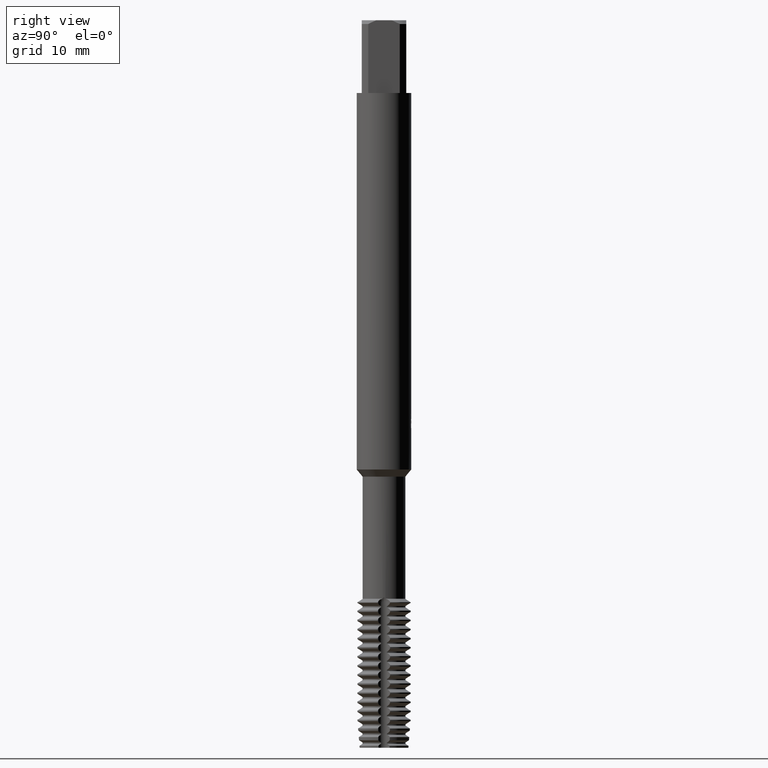
[diagram: clean part render]
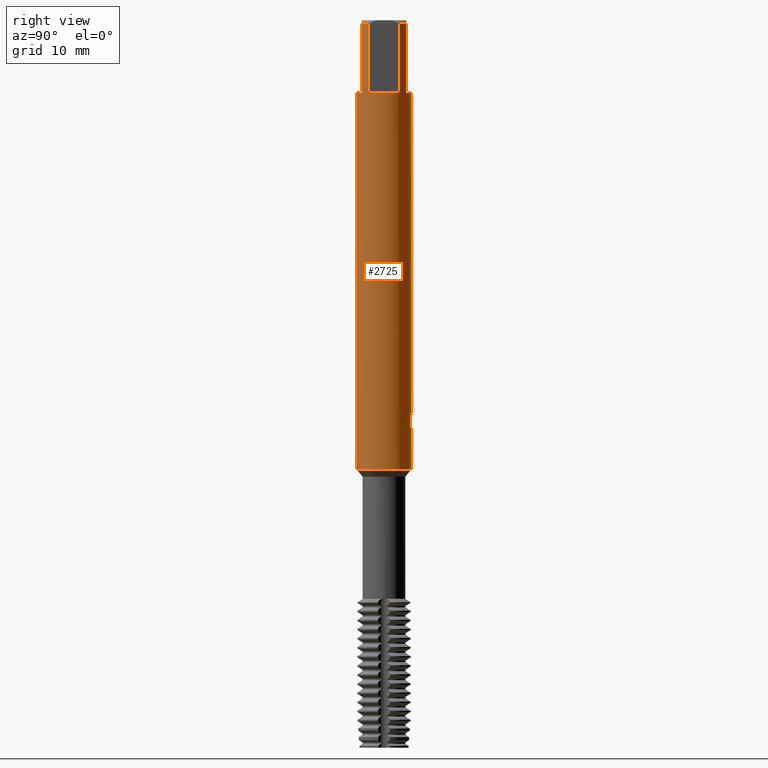
[diagram: same view with one face highlighted and labeled with its STEP entity id]
A machine part, right view. The second image highlights one B-rep face of the part: STEP entity #2725.
In plain terms, the highlighted cylindrical surface (edge-blend (fillet) strip) has radius 3 mm, axis along (-0, -0, 1).
Its self-contained STEP definition (entity closure, byte-faithful):
#2725=ADVANCED_FACE('',(#8128),#8129,.T.);
#3111=VERTEX_POINT('',#8548);
#3395=VERTEX_POINT('',#8858);
#3441=EDGE_CURVE('',#7007,#3651,#8906,.T.);
#3625=EDGE_CURVE('',#7101,#5955,#9104,.T.);
#3651=VERTEX_POINT('',#9132);
#3693=EDGE_CURVE('',#7841,#3809,#9177,.T.);
#3791=EDGE_CURVE('',#5959,#6315,#9279,.T.);
#3809=VERTEX_POINT('',#9301);
#3919=EDGE_CURVE('',#4203,#7877,#9416,.T.);
#3993=VERTEX_POINT('',#9498);
#4203=VERTEX_POINT('',#9729);
#4419=EDGE_CURVE('',#6315,#3651,#9964,.T.);
#4421=EDGE_CURVE('',#7243,#4747,#9966,.T.);
#4495=EDGE_CURVE('',#4747,#3809,#10051,.T.);
#4505=VERTEX_POINT('',#10062);
#4637=EDGE_CURVE('',#5231,#5229,#10207,.T.);
#4747=VERTEX_POINT('',#10329);
#5229=VERTEX_POINT('',#10859);
#5231=VERTEX_POINT('',#10861);
#5393=EDGE_CURVE('',#5955,#3111,#11036,.T.);
#5591=EDGE_CURVE('',#5717,#7101,#11241,.T.);
#5689=VERTEX_POINT('',#11346);
#5717=VERTEX_POINT('',#11376);
#5805=EDGE_CURVE('',#5689,#7007,#11469,.T.);
#5955=VERTEX_POINT('',#11637);
#5959=VERTEX_POINT('',#11641);
#6031=EDGE_CURVE('',#7877,#5231,#11716,.T.);
#6315=VERTEX_POINT('',#12028);
#6519=EDGE_CURVE('',#3993,#5689,#12247,.T.);
#6683=EDGE_CURVE('',#3993,#4203,#12424,.T.);
#6801=EDGE_CURVE('',#3395,#4505,#12552,.T.);
#7007=VERTEX_POINT('',#12774);
#7023=EDGE_CURVE('',#4505,#5959,#12794,.T.);
#7101=VERTEX_POINT('',#12881);
#7243=VERTEX_POINT('',#13033);
#7551=EDGE_CURVE('',#7841,#5717,#13368,.T.);
#7837=EDGE_CURVE('',#5229,#7243,#13676,.T.);
#7841=VERTEX_POINT('',#13680);
#7877=VERTEX_POINT('',#13718);
#8035=EDGE_CURVE('',#3111,#3395,#13886,.T.);
#8128=FACE_OUTER_BOUND('',#13980,.T.);
#8129=CYLINDRICAL_SURFACE('',#13981,3.0);
#8548=CARTESIAN_POINT('',(2.45,1.73132896931808,-8.0));
#8858=CARTESIAN_POINT('',(2.45,-1.73132896931808,-8.0));
#8906=LINE('',#15521,#15522);
#9104=CIRCLE('',#15942,3.0);
#9132=CARTESIAN_POINT('',(3.67381906146713E-016,-3.0,-8.0));
#9177=LINE('',#16072,#16073);
#9279=LINE('',#16275,#16276);
#9301=CARTESIAN_POINT('',(-1.12849631556043E-014,3.0,-43.8389612870646));
#9416=ELLIPSE('',#16536,9.14398372010932,3.0);
#9498=CARTESIAN_POINT('',(1.40597456414282E-015,2.99999999999999,-45.043615216062));
#9729=CARTESIAN_POINT('',(0.174061876221498,2.99494615364722,-45.0248997394137));
#9964=CIRCLE('',#17447,3.0);
#9966=B_SPLINE_CURVE_WITH_KNOTS('',3,(#17450,#17451,#17452,#17453,#17454,#17455),.UNSPECIFIED.,.F.,.F.,(4,2,4),(0.37107796654128,0.74215593308256,1.11285058772105),.UNSPECIFIED.);
#10051=B_SPLINE_CURVE_WITH_KNOTS('',3,(#17582,#17583,#17584,#17585,#17586,#17587,#17588,#17589,#17590,#17591,#17592,#17593,#17594,#17595,#17596,#17597,#17598,#17599,#17600,#17601,#17602,#17603,#17604,#17605,#17606,#17607,#17608),.UNSPECIFIED.,.F.,.F.,(4,2,3,2,2,2,2,2,2,2,2,2,4),(-0.325491662881047,-0.162745831440524,0.0,0.162745831440523,0.325491662881047,0.48857928896217,0.651666915043293,0.814181075788761,0.97669523653423,1.13937860219068,1.30206196784712,1.46474533350356,1.62742869916001),.UNSPECIFIED.);
#10062=CARTESIAN_POINT('',(2.45,-1.73132896931808,-0.399999999999999));
#10207=B_SPLINE_CURVE_WITH_KNOTS('',3,(#17872,#17873,#17874,#17875,#17876,#17877),.UNSPECIFIED.,.F.,.F.,(4,2,4),(4.82387363034724,5.19456827247255,5.56564622611886),.UNSPECIFIED.);
#10329=CARTESIAN_POINT('',(0.479659035830618,2.96140628913799,-43.2250001661238));
#10859=CARTESIAN_POINT('',(0.802326039087947,2.89072186953388,-44.5990994201954));
#10861=CARTESIAN_POINT('',(0.524136469055373,2.95385865636902,-44.8802411074919));
#11036=LINE('',#19531,#19532);
#11241=LINE('',#19931,#19932);
#11346=CARTESIAN_POINT('',(0.0,3.0,-49.4));
#11376=CARTESIAN_POINT('',(1.73132896931808,2.45,-8.0));
#11469=CIRCLE('',#20388,3.0);
#11637=CARTESIAN_POINT('',(2.45,1.73132896931808,-0.399999999999999));
#11641=CARTESIAN_POINT('',(1.73132896931808,-2.45,-0.399999999999999));
#11716=LINE('',#20840,#20841);
#12028=CARTESIAN_POINT('',(1.73132896931808,-2.45,-8.0));
#12247=LINE('',#21833,#21834);
#12424=B_SPLINE_CURVE_WITH_KNOTS('',3,(#22116,#22117,#22118,#22119,#22120,#22121,#22122,#22123,#22124,#22125),.UNSPECIFIED.,.F.,.F.,(4,2,2,2,4),(3.33952438176389,3.71068639626914,4.08193290438485,4.45317941250055,4.82387408804259),.UNSPECIFIED.);
#12552=LINE('',#22396,#22397);
#12774=CARTESIAN_POINT('',(3.67381906146713E-016,-3.0,-49.4));
#12794=CIRCLE('',#22810,3.0);
#12881=CARTESIAN_POINT('',(1.73132896931808,2.45,-0.399999999999999));
#13033=CARTESIAN_POINT('',(0.802326039087946,2.89072186953388,-43.5340290618893));
#13368=CIRCLE('',#23952,3.0);
#13676=LINE('',#24568,#24569);
#13680=CARTESIAN_POINT('',(-3.67381906146713E-016,3.0,-8.0));
#13718=CARTESIAN_POINT('',(0.524136469055374,2.95385865636902,-44.0169358957655));
#13886=CIRCLE('',#24967,3.0);
#13980=EDGE_LOOP('',(#25106,#25107,#25108,#25109,#25110,#25111,#25112,#25113,#25114,#25115,#25116,#25117,#25118,#25119,#25120,#25121,#25122,#25123,#25124,#25125));
#13981=AXIS2_PLACEMENT_3D('',#25126,#25127,#25128);
#15521=CARTESIAN_POINT('',(3.67381906146713E-016,-3.0,-24.9));
#15522=VECTOR('',#25998,1.0);
#15942=AXIS2_PLACEMENT_3D('',#26153,#26154,#26155);
#16072=CARTESIAN_POINT('',(-3.67381906146713E-016,3.0,-24.9));
#16073=VECTOR('',#26237,1.0);
#16275=CARTESIAN_POINT('',(1.73132896931808,-2.45,-4.2));
#16276=VECTOR('',#26312,1.0);
#16536=AXIS2_PLACEMENT_3D('',#26446,#26447,#26448);
#17447=AXIS2_PLACEMENT_3D('',#27008,#27009,#27010);
#17450=CARTESIAN_POINT('',(0.885267806757019,2.86640906193091,-43.6913327006887));
#17451=CARTESIAN_POINT('',(0.835257364243696,2.88185438127597,-43.5710769466886));
#17452=CARTESIAN_POINT('',(0.760180789012212,2.90344206972957,-43.4617632829805));
#17453=CARTESIAN_POINT('',(0.587589839319659,2.9432248732203,-43.2892350710499));
#17454=CARTESIAN_POINT('',(0.478286561023017,2.96410351776529,-43.2141862553258));
#17455=CARTESIAN_POINT('',(0.358041915481563,2.97855770243893,-43.1642072565724));
#17582=CARTESIAN_POINT('',(0.399073662054701,2.9733382270193,-43.1131578074487));
#17583=CARTESIAN_POINT('',(0.437241118172757,2.96821549111729,-43.1513666363942));
#17584=CARTESIAN_POINT('',(0.470378499662079,2.96297848846858,-43.1997661621587));
#17585=CARTESIAN_POINT('',(0.514381160077738,2.95565719997762,-43.3059468503984));
#17586=CARTESIAN_POINT('',(0.525240588713139,2.95366252709552,-43.3637365970719));
#17587=CARTESIAN_POINT('',(0.525240588713139,2.95366252709552,-43.4179852075521));
#17588=CARTESIAN_POINT('',(0.525240588713139,2.95366252709552,-43.4722338180323));
#17589=CARTESIAN_POINT('',(0.514381160077738,2.95565719997762,-43.5300235647058));
#17590=CARTESIAN_POINT('',(0.470378499662079,2.96297848846858,-43.6362042529454));
#17591=CARTESIAN_POINT('',(0.437241118172758,2.96821549111729,-43.68460377871));
#17592=CARTESIAN_POINT('',(0.360826047619651,2.97847172156046,-43.7611016818081));
#17593=CARTESIAN_POINT('',(0.312384718269332,2.98416839722865,-43.7943131706837));
#17594=CARTESIAN_POINT('',(0.206102293488516,2.99338722515065,-43.8384202069633));
#17595=CARTESIAN_POINT('',(0.148251731896476,2.99682777449178,-43.8493099616648));
#17596=CARTESIAN_POINT('',(0.0397709987252813,3.00022545933147,-43.8493099616648));
#17597=CARTESIAN_POINT('',(-0.0179912012444204,3.00041652694693,-43.8384886213906));
#17598=CARTESIAN_POINT('',(-0.124225517538501,2.99789776999505,-43.7944963705132));
#17599=CARTESIAN_POINT('',(-0.172700489972417,2.99527068292401,-43.7613276588387));
#17600=CARTESIAN_POINT('',(-0.249281669772502,2.9898718432363,-43.6847995158294));
#17601=CARTESIAN_POINT('',(-0.282493736677505,2.98675204362553,-43.6363123678398));
#17602=CARTESIAN_POINT('',(-0.326558647658044,2.98225584656319,-43.5300214521099));
#17603=CARTESIAN_POINT('',(-0.337408919512348,2.9809654847102,-43.4722129961042));
#17604=CARTESIAN_POINT('',(-0.337408919512347,2.9809654847102,-43.3637574189999));
#17605=CARTESIAN_POINT('',(-0.326558647658045,2.98225584656319,-43.3059489629942));
#17606=CARTESIAN_POINT('',(-0.282493736677516,2.98675204362553,-43.1996580472644));
#17607=CARTESIAN_POINT('',(-0.2492816697725,2.9898718432363,-43.1511708992748));
#17608=CARTESIAN_POINT('',(-0.210971156732432,2.9925726676268,-43.112886918428));
#17872=CARTESIAN_POINT('',(0.358041928866453,2.97855770082998,-44.9689212158429));
#17873=CARTESIAN_POINT('',(0.47828657030583,2.96410351610127,-44.9189422187729));
#17874=CARTESIAN_POINT('',(0.587589844864579,2.94322487202299,-44.8438934055854));
#17875=CARTESIAN_POINT('',(0.760180788580036,2.9034420697483,-44.671365199533));
#17876=CARTESIAN_POINT('',(0.835257361192056,2.88185438212672,-44.5620515395987));
#17877=CARTESIAN_POINT('',(0.885267801957584,2.86640906341317,-44.4417957897556));
#19531=CARTESIAN_POINT('',(2.45,1.73132896931808,-4.2));
#19532=VECTOR('',#28275,1.0);
#19931=CARTESIAN_POINT('',(1.73132896931808,2.45,-4.2));
#19932=VECTOR('',#28409,1.0);
#20388=AXIS2_PLACEMENT_3D('',#28714,#28715,#28716);
#20840=CARTESIAN_POINT('',(0.524136469055374,2.95385865636902,-44.4485885016287));
#20841=VECTOR('',#28981,1.0);
#21833=CARTESIAN_POINT('',(-3.67381906146713E-016,3.0,-24.9));
#21834=VECTOR('',#29530,1.0);
#22116=CARTESIAN_POINT('',(-0.919321134391313,2.85566956279284,-44.4417514643836));
#22117=CARTESIAN_POINT('',(-0.869340333826626,2.87175979045446,-44.5619526818478));
#22118=CARTESIAN_POINT('',(-0.7943367658771,2.89428729416518,-44.671180348735));
#22119=CARTESIAN_POINT('',(-0.62190649826245,2.93617195165647,-44.8436756687858));
#22120=CARTESIAN_POINT('',(-0.512637169305669,2.95836427575571,-44.9187653794613));
#22121=CARTESIAN_POINT('',(-0.272101743389458,2.99009643596645,-45.0188340938058));
#22122=CARTESIAN_POINT('',(-0.140764146727553,2.99924977776393,-45.0437634001052));
#22123=CARTESIAN_POINT('',(0.106545602280532,3.0006526485303,-45.0437634001052));
#22124=CARTESIAN_POINT('',(0.237797441372151,2.9930118737714,-45.0189004779081));
#22125=CARTESIAN_POINT('',(0.358042092904167,2.97855768111158,-44.9689214764374));
#22396=CARTESIAN_POINT('',(2.45,-1.73132896931808,-4.2));
#22397=VECTOR('',#29817,1.0);
#22810=AXIS2_PLACEMENT_3D('',#30063,#30064,#30065);
#23952=AXIS2_PLACEMENT_3D('',#30754,#30755,#30756);
#24568=CARTESIAN_POINT('',(0.802326039087947,2.89072186953388,-44.0665642410423));
#24569=VECTOR('',#31034,1.0);
#24967=AXIS2_PLACEMENT_3D('',#31196,#31197,#31198);
#25106=ORIENTED_EDGE('',*,*,#3693,.F.);
#25107=ORIENTED_EDGE('',*,*,#7551,.T.);
#25108=ORIENTED_EDGE('',*,*,#5591,.T.);
#25109=ORIENTED_EDGE('',*,*,#3625,.T.);
#25110=ORIENTED_EDGE('',*,*,#5393,.T.);
#25111=ORIENTED_EDGE('',*,*,#8035,.T.);
#25112=ORIENTED_EDGE('',*,*,#6801,.T.);
#25113=ORIENTED_EDGE('',*,*,#7023,.T.);
#25114=ORIENTED_EDGE('',*,*,#3791,.T.);
#25115=ORIENTED_EDGE('',*,*,#4419,.T.);
#25116=ORIENTED_EDGE('',*,*,#3441,.F.);
#25117=ORIENTED_EDGE('',*,*,#5805,.F.);
#25118=ORIENTED_EDGE('',*,*,#6519,.F.);
#25119=ORIENTED_EDGE('',*,*,#6683,.T.);
#25120=ORIENTED_EDGE('',*,*,#3919,.T.);
#25121=ORIENTED_EDGE('',*,*,#6031,.T.);
#25122=ORIENTED_EDGE('',*,*,#4637,.T.);
#25123=ORIENTED_EDGE('',*,*,#7837,.T.);
#25124=ORIENTED_EDGE('',*,*,#4421,.T.);
#25125=ORIENTED_EDGE('',*,*,#4495,.T.);
#25126=CARTESIAN_POINT('',(0.0,0.0,-24.9));
#25127=DIRECTION('',(-0.0,-0.0,1.0));
#25128=DIRECTION('',(0.0,1.0,0.0));
#25998=DIRECTION('',(-0.0,-0.0,1.0));
#26153=CARTESIAN_POINT('',(0.0,0.0,-0.399999999999999));
#26154=DIRECTION('',(0.0,0.0,-1.0));
#26155=DIRECTION('',(0.0,1.0,0.0));
#26237=DIRECTION('',(0.0,0.0,-1.0));
#26312=DIRECTION('',(0.0,0.0,-1.0));
#26446=CARTESIAN_POINT('',(0.0,0.0,-45.5260731503961));
#26447=DIRECTION('',(0.944648353914092,0.0,-0.328084573619969));
#26448=DIRECTION('',(0.328084573619969,-0.0,0.944648353914092));
#27008=CARTESIAN_POINT('',(0.0,0.0,-8.0));
#27009=DIRECTION('',(0.0,0.0,-1.0));
#27010=DIRECTION('',(0.0,1.0,0.0));
#28275=DIRECTION('',(0.0,0.0,-1.0));
#28409=DIRECTION('',(-0.0,-0.0,1.0));
#28714=CARTESIAN_POINT('',(0.0,0.0,-49.4));
#28715=DIRECTION('',(0.0,0.0,-1.0));
#28716=DIRECTION('',(0.0,1.0,0.0));
#28981=DIRECTION('',(0.0,0.0,-1.0));
#29530=DIRECTION('',(0.0,0.0,-1.0));
#29817=DIRECTION('',(-0.0,-0.0,1.0));
#30063=CARTESIAN_POINT('',(0.0,0.0,-0.399999999999999));
#30064=DIRECTION('',(0.0,0.0,-1.0));
#30065=DIRECTION('',(0.0,1.0,0.0));
#30754=CARTESIAN_POINT('',(0.0,0.0,-8.0));
#30755=DIRECTION('',(0.0,0.0,-1.0));
#30756=DIRECTION('',(0.0,1.0,0.0));
#31034=DIRECTION('',(-0.0,-0.0,1.0));
#31196=CARTESIAN_POINT('',(0.0,0.0,-8.0));
#31197=DIRECTION('',(0.0,0.0,-1.0));
#31198=DIRECTION('',(0.0,1.0,0.0));